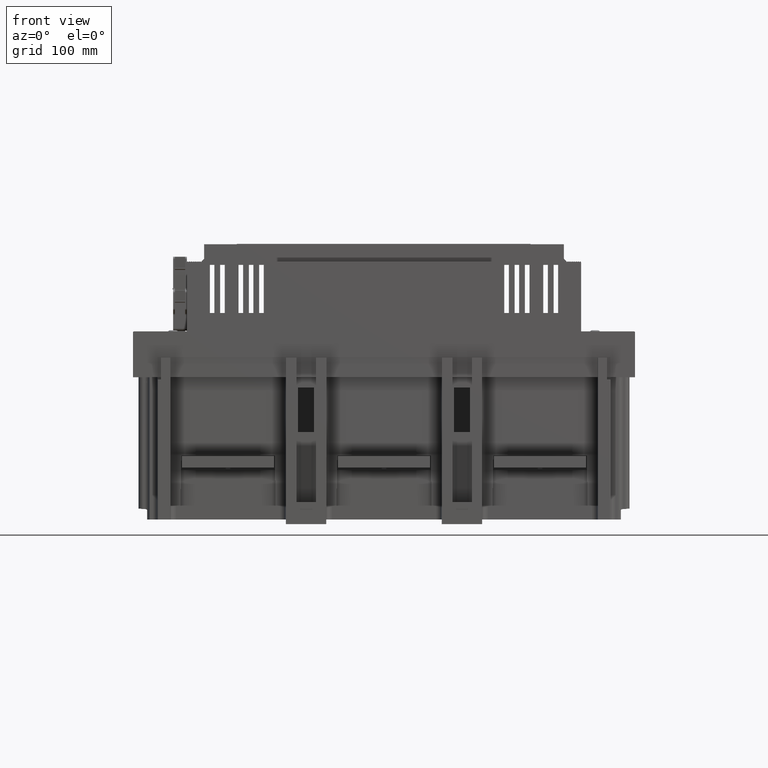
[diagram: clean part render]
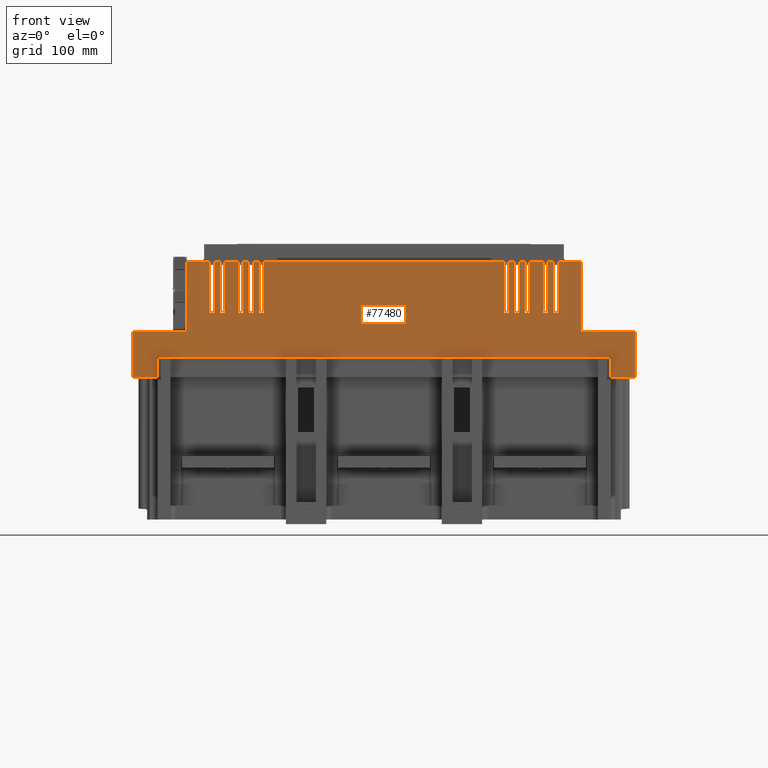
[diagram: same view with one face highlighted and labeled with its STEP entity id]
A machine part, front view. The second image highlights one B-rep face of the part: STEP entity #77480.
In plain terms, the highlighted planar face has unit normal (0, -1, 0).
Its self-contained STEP definition (entity closure, byte-faithful):
#64335=DIRECTION('',(1.E0,0.E0,0.E0));
#64336=VECTOR('',#64335,2.135E1);
#64337=CARTESIAN_POINT('',(1.975E2,-1.435E2,0.E0));
#64338=LINE('',#64337,#64336);
#64391=DIRECTION('',(1.E0,0.E0,0.E0));
#64392=VECTOR('',#64391,2.135E1);
#64393=CARTESIAN_POINT('',(-2.1885E2,-1.435E2,0.E0));
#64394=LINE('',#64393,#64392);
#66626=DIRECTION('',(0.E0,0.E0,1.E0));
#66627=VECTOR('',#66626,1.75E1);
#66628=CARTESIAN_POINT('',(-1.975E2,-1.435E2,0.E0));
#66629=LINE('',#66628,#66627);
#66633=DIRECTION('',(0.E0,0.E0,1.E0));
#66634=VECTOR('',#66633,3.900000000001E1);
#66635=CARTESIAN_POINT('',(-2.1885E2,-1.435E2,0.E0));
#66636=LINE('',#66635,#66634);
#66640=CARTESIAN_POINT('',(-2.1785E2,-1.435E2,3.900000000001E1));
#66641=DIRECTION('',(0.E0,1.E0,0.E0));
#66642=DIRECTION('',(-1.E0,0.E0,-3.410605131671E-13));
#66643=AXIS2_PLACEMENT_3D('',#66640,#66641,#66642);
#66648=DIRECTION('',(-1.E0,0.E0,0.E0));
#66649=VECTOR('',#66648,4.600000000001E1);
#66650=CARTESIAN_POINT('',(-1.7185E2,-1.435E2,4.E1));
#66651=LINE('',#66650,#66649);
#66655=DIRECTION('',(0.E0,0.E0,-1.E0));
#66656=VECTOR('',#66655,6.000000000001E1);
#66657=CARTESIAN_POINT('',(-1.7185E2,-1.435E2,1.E2));
#66658=LINE('',#66657,#66656);
#66662=CARTESIAN_POINT('',(-1.7085E2,-1.435E2,1.E2));
#66663=DIRECTION('',(0.E0,1.E0,0.E0));
#66664=DIRECTION('',(-1.E0,0.E0,0.E0));
#66665=AXIS2_PLACEMENT_3D('',#66662,#66663,#66664);
#66670=DIRECTION('',(1.E0,0.E0,-4.736951571632E-14));
#66671=VECTOR('',#66670,3.000000000065E-1);
#66672=CARTESIAN_POINT('',(-1.7085E2,-1.435E2,1.01E2));
#66673=LINE('',#66672,#66671);
#66677=DIRECTION('',(0.E0,0.E0,-1.E0));
#66678=VECTOR('',#66677,5.E-1);
#66679=CARTESIAN_POINT('',(-1.7055E2,-1.435E2,1.01E2));
#66680=LINE('',#66679,#66678);
#66684=DIRECTION('',(-1.E0,0.E0,-5.684341886082E-14));
#66685=VECTOR('',#66684,4.999999999999E-1);
#66686=CARTESIAN_POINT('',(-1.7005E2,-1.435E2,1.005E2));
#66687=LINE('',#66686,#66685);
#66691=DIRECTION('',(0.E0,0.E0,-1.E0));
#66692=VECTOR('',#66691,4.999999999999E-1);
#66693=CARTESIAN_POINT('',(-1.7005E2,-1.435E2,1.01E2));
#66694=LINE('',#66693,#66692);
#66698=DIRECTION('',(1.E0,0.E0,-1.093142670400E-14));
#66699=VECTOR('',#66698,1.3E0);
#66700=CARTESIAN_POINT('',(-1.7005E2,-1.435E2,1.01E2));
#66701=LINE('',#66700,#66699);
#66705=DIRECTION('',(0.E0,0.E0,-1.E0));
#66706=VECTOR('',#66705,5.E-1);
#66707=CARTESIAN_POINT('',(-1.6875E2,-1.435E2,1.01E2));
#66708=LINE('',#66707,#66706);
#66712=DIRECTION('',(-1.E0,0.E0,-5.684341886082E-14));
#66713=VECTOR('',#66712,4.999999999999E-1);
#66714=CARTESIAN_POINT('',(-1.6825E2,-1.435E2,1.005E2));
#66715=LINE('',#66714,#66713);
#66719=DIRECTION('',(0.E0,0.E0,-1.E0));
#66720=VECTOR('',#66719,4.999999999999E-1);
#66721=CARTESIAN_POINT('',(-1.6825E2,-1.435E2,1.01E2));
#66722=LINE('',#66721,#66720);
#66726=DIRECTION('',(1.E0,0.E0,-1.093142670400E-14));
#66727=VECTOR('',#66726,1.3E0);
#66728=CARTESIAN_POINT('',(-1.6825E2,-1.435E2,1.01E2));
#66729=LINE('',#66728,#66727);
#66733=DIRECTION('',(0.E0,0.E0,-1.E0));
#66734=VECTOR('',#66733,5.E-1);
#66735=CARTESIAN_POINT('',(-1.6695E2,-1.435E2,1.01E2));
#66736=LINE('',#66735,#66734);
#66740=DIRECTION('',(-1.E0,0.E0,-5.684341886082E-14));
#66741=VECTOR('',#66740,4.999999999999E-1);
#66742=CARTESIAN_POINT('',(-1.6645E2,-1.435E2,1.005E2));
#66743=LINE('',#66742,#66741);
#66747=DIRECTION('',(0.E0,0.E0,-1.E0));
#66748=VECTOR('',#66747,4.999999999999E-1);
#66749=CARTESIAN_POINT('',(-1.6645E2,-1.435E2,1.01E2));
#66750=LINE('',#66749,#66748);
#66754=DIRECTION('',(1.E0,0.E0,-1.093142670400E-14));
#66755=VECTOR('',#66754,1.3E0);
#66756=CARTESIAN_POINT('',(-1.6645E2,-1.435E2,1.01E2));
#66757=LINE('',#66756,#66755);
#66761=DIRECTION('',(0.E0,0.E0,-1.E0));
#66762=VECTOR('',#66761,5.E-1);
#66763=CARTESIAN_POINT('',(-1.6515E2,-1.435E2,1.01E2));
#66764=LINE('',#66763,#66762);
#66768=DIRECTION('',(-1.E0,0.E0,-5.684341886082E-14));
#66769=VECTOR('',#66768,4.999999999999E-1);
#66770=CARTESIAN_POINT('',(-1.6465E2,-1.435E2,1.005E2));
#66771=LINE('',#66770,#66769);
#66775=DIRECTION('',(0.E0,0.E0,-1.E0));
#66776=VECTOR('',#66775,4.999999999999E-1);
#66777=CARTESIAN_POINT('',(-1.6465E2,-1.435E2,1.01E2));
#66778=LINE('',#66777,#66776);
#66782=DIRECTION('',(1.E0,0.E0,-1.093142670400E-14));
#66783=VECTOR('',#66782,1.3E0);
#66784=CARTESIAN_POINT('',(-1.6465E2,-1.435E2,1.01E2));
#66785=LINE('',#66784,#66783);
#66789=DIRECTION('',(0.E0,0.E0,-1.E0));
#66790=VECTOR('',#66789,5.E-1);
#66791=CARTESIAN_POINT('',(-1.6335E2,-1.435E2,1.01E2));
#66792=LINE('',#66791,#66790);
#66796=DIRECTION('',(-1.E0,0.E0,-5.684341886082E-14));
#66797=VECTOR('',#66796,4.999999999999E-1);
#66798=CARTESIAN_POINT('',(-1.6285E2,-1.435E2,1.005E2));
#66799=LINE('',#66798,#66797);
#66803=DIRECTION('',(0.E0,0.E0,-1.E0));
#66804=VECTOR('',#66803,4.999999999999E-1);
#66805=CARTESIAN_POINT('',(-1.6285E2,-1.435E2,1.01E2));
#66806=LINE('',#66805,#66804);
#66810=DIRECTION('',(1.E0,0.E0,-1.093142670400E-14));
#66811=VECTOR('',#66810,1.3E0);
#66812=CARTESIAN_POINT('',(-1.6285E2,-1.435E2,1.01E2));
#66813=LINE('',#66812,#66811);
#66817=DIRECTION('',(0.E0,0.E0,-1.E0));
#66818=VECTOR('',#66817,5.E-1);
#66819=CARTESIAN_POINT('',(-1.6155E2,-1.435E2,1.01E2));
#66820=LINE('',#66819,#66818);
#66824=DIRECTION('',(-1.E0,0.E0,-5.684341886082E-14));
#66825=VECTOR('',#66824,4.999999999999E-1);
#66826=CARTESIAN_POINT('',(-1.6105E2,-1.435E2,1.005E2));
#66827=LINE('',#66826,#66825);
#66831=DIRECTION('',(0.E0,0.E0,-1.E0));
#66832=VECTOR('',#66831,4.999999999999E-1);
#66833=CARTESIAN_POINT('',(-1.6105E2,-1.435E2,1.01E2));
#66834=LINE('',#66833,#66832);
#66838=DIRECTION('',(1.E0,0.E0,-1.093142670400E-14));
#66839=VECTOR('',#66838,1.3E0);
#66840=CARTESIAN_POINT('',(-1.6105E2,-1.435E2,1.01E2));
#66841=LINE('',#66840,#66839);
#66845=DIRECTION('',(0.E0,0.E0,-1.E0));
#66846=VECTOR('',#66845,5.E-1);
#66847=CARTESIAN_POINT('',(-1.5975E2,-1.435E2,1.01E2));
#66848=LINE('',#66847,#66846);
#66852=DIRECTION('',(-1.E0,0.E0,-5.684341886082E-14));
#66853=VECTOR('',#66852,4.999999999999E-1);
#66854=CARTESIAN_POINT('',(-1.5925E2,-1.435E2,1.005E2));
#66855=LINE('',#66854,#66853);
#66859=DIRECTION('',(0.E0,0.E0,-1.E0));
#66860=VECTOR('',#66859,4.999999999999E-1);
#66861=CARTESIAN_POINT('',(-1.5925E2,-1.435E2,1.01E2));
#66862=LINE('',#66861,#66860);
#66866=DIRECTION('',(1.E0,0.E0,0.E0));
#66867=VECTOR('',#66866,7.400000000001E0);
#66868=CARTESIAN_POINT('',(-1.5925E2,-1.435E2,1.01E2));
#66869=LINE('',#66868,#66867);
#66873=DIRECTION('',(0.E0,0.E0,-1.E0));
#66874=VECTOR('',#66873,4.5E1);
#66875=CARTESIAN_POINT('',(-1.5185E2,-1.435E2,1.01E2));
#66876=LINE('',#66875,#66874);
#66880=DIRECTION('',(-1.E0,0.E0,0.E0));
#66881=VECTOR('',#66880,4.E0);
#66882=CARTESIAN_POINT('',(-1.4785E2,-1.435E2,5.6E1));
#66883=LINE('',#66882,#66881);
#66887=DIRECTION('',(0.E0,0.E0,-1.E0));
#66888=VECTOR('',#66887,4.5E1);
#66889=CARTESIAN_POINT('',(-1.4785E2,-1.435E2,1.01E2));
#66890=LINE('',#66889,#66888);
#66894=DIRECTION('',(1.E0,0.E0,0.E0));
#66895=VECTOR('',#66894,5.E0);
#66896=CARTESIAN_POINT('',(-1.4785E2,-1.435E2,1.01E2));
#66897=LINE('',#66896,#66895);
#66901=DIRECTION('',(0.E0,0.E0,-1.E0));
#66902=VECTOR('',#66901,4.5E1);
#66903=CARTESIAN_POINT('',(-1.4285E2,-1.435E2,1.01E2));
#66904=LINE('',#66903,#66902);
#66908=DIRECTION('',(-1.E0,0.E0,0.E0));
#66909=VECTOR('',#66908,4.E0);
#66910=CARTESIAN_POINT('',(-1.3885E2,-1.435E2,5.6E1));
#66911=LINE('',#66910,#66909);
#66915=DIRECTION('',(0.E0,0.E0,-1.E0));
#66916=VECTOR('',#66915,4.5E1);
#66917=CARTESIAN_POINT('',(-1.3885E2,-1.435E2,1.01E2));
#66918=LINE('',#66917,#66916);
#66922=DIRECTION('',(1.E0,0.E0,0.E0));
#66923=VECTOR('',#66922,1.2E1);
#66924=CARTESIAN_POINT('',(-1.3885E2,-1.435E2,1.01E2));
#66925=LINE('',#66924,#66923);
#66929=DIRECTION('',(0.E0,0.E0,-1.E0));
#66930=VECTOR('',#66929,4.5E1);
#66931=CARTESIAN_POINT('',(-1.2685E2,-1.435E2,1.01E2));
#66932=LINE('',#66931,#66930);
#66936=DIRECTION('',(-1.E0,0.E0,0.E0));
#66937=VECTOR('',#66936,4.E0);
#66938=CARTESIAN_POINT('',(-1.2285E2,-1.435E2,5.6E1));
#66939=LINE('',#66938,#66937);
#66943=DIRECTION('',(0.E0,0.E0,-1.E0));
#66944=VECTOR('',#66943,4.5E1);
#66945=CARTESIAN_POINT('',(-1.2285E2,-1.435E2,1.01E2));
#66946=LINE('',#66945,#66944);
#66950=DIRECTION('',(1.E0,0.E0,0.E0));
#66951=VECTOR('',#66950,5.E0);
#66952=CARTESIAN_POINT('',(-1.2285E2,-1.435E2,1.01E2));
#66953=LINE('',#66952,#66951);
#66957=DIRECTION('',(0.E0,0.E0,-1.E0));
#66958=VECTOR('',#66957,4.5E1);
#66959=CARTESIAN_POINT('',(-1.1785E2,-1.435E2,1.01E2));
#66960=LINE('',#66959,#66958);
#66964=DIRECTION('',(-1.E0,0.E0,0.E0));
#66965=VECTOR('',#66964,4.E0);
#66966=CARTESIAN_POINT('',(-1.1385E2,-1.435E2,5.6E1));
#66967=LINE('',#66966,#66965);
#66971=DIRECTION('',(0.E0,0.E0,-1.E0));
#66972=VECTOR('',#66971,4.5E1);
#66973=CARTESIAN_POINT('',(-1.1385E2,-1.435E2,1.01E2));
#66974=LINE('',#66973,#66972);
#66978=DIRECTION('',(1.E0,0.E0,0.E0));
#66979=VECTOR('',#66978,5.E0);
#66980=CARTESIAN_POINT('',(-1.1385E2,-1.435E2,1.01E2));
#66981=LINE('',#66980,#66979);
#66985=DIRECTION('',(0.E0,0.E0,-1.E0));
#66986=VECTOR('',#66985,4.5E1);
#66987=CARTESIAN_POINT('',(-1.0885E2,-1.435E2,1.01E2));
#66988=LINE('',#66987,#66986);
#66992=DIRECTION('',(-1.E0,0.E0,0.E0));
#66993=VECTOR('',#66992,4.E0);
#66994=CARTESIAN_POINT('',(-1.0485E2,-1.435E2,5.6E1));
#66995=LINE('',#66994,#66993);
#66999=DIRECTION('',(0.E0,0.E0,-1.E0));
#67000=VECTOR('',#66999,4.5E1);
#67001=CARTESIAN_POINT('',(-1.0485E2,-1.435E2,1.01E2));
#67002=LINE('',#67001,#67000);
#67006=DIRECTION('',(1.E0,0.E0,0.E0));
#67007=VECTOR('',#67006,2.097E2);
#67008=CARTESIAN_POINT('',(-1.0485E2,-1.435E2,1.01E2));
#67009=LINE('',#67008,#67007);
#67013=DIRECTION('',(0.E0,0.E0,-1.E0));
#67014=VECTOR('',#67013,4.5E1);
#67015=CARTESIAN_POINT('',(1.0485E2,-1.435E2,1.01E2));
#67016=LINE('',#67015,#67014);
#67020=DIRECTION('',(-1.E0,0.E0,0.E0));
#67021=VECTOR('',#67020,4.E0);
#67022=CARTESIAN_POINT('',(1.0885E2,-1.435E2,5.6E1));
#67023=LINE('',#67022,#67021);
#67027=DIRECTION('',(0.E0,0.E0,-1.E0));
#67028=VECTOR('',#67027,4.5E1);
#67029=CARTESIAN_POINT('',(1.0885E2,-1.435E2,1.01E2));
#67030=LINE('',#67029,#67028);
#67034=DIRECTION('',(1.E0,0.E0,0.E0));
#67035=VECTOR('',#67034,5.E0);
#67036=CARTESIAN_POINT('',(1.0885E2,-1.435E2,1.01E2));
#67037=LINE('',#67036,#67035);
#67041=DIRECTION('',(0.E0,0.E0,-1.E0));
#67042=VECTOR('',#67041,4.5E1);
#67043=CARTESIAN_POINT('',(1.1385E2,-1.435E2,1.01E2));
#67044=LINE('',#67043,#67042);
#67048=DIRECTION('',(-1.E0,0.E0,0.E0));
#67049=VECTOR('',#67048,4.E0);
#67050=CARTESIAN_POINT('',(1.1785E2,-1.435E2,5.6E1));
#67051=LINE('',#67050,#67049);
#67055=DIRECTION('',(0.E0,0.E0,-1.E0));
#67056=VECTOR('',#67055,4.5E1);
#67057=CARTESIAN_POINT('',(1.1785E2,-1.435E2,1.01E2));
#67058=LINE('',#67057,#67056);
#67062=DIRECTION('',(1.E0,0.E0,0.E0));
#67063=VECTOR('',#67062,5.E0);
#67064=CARTESIAN_POINT('',(1.1785E2,-1.435E2,1.01E2));
#67065=LINE('',#67064,#67063);
#67069=DIRECTION('',(0.E0,0.E0,-1.E0));
#67070=VECTOR('',#67069,4.5E1);
#67071=CARTESIAN_POINT('',(1.2285E2,-1.435E2,1.01E2));
#67072=LINE('',#67071,#67070);
#67076=DIRECTION('',(-1.E0,0.E0,0.E0));
#67077=VECTOR('',#67076,4.E0);
#67078=CARTESIAN_POINT('',(1.2685E2,-1.435E2,5.6E1));
#67079=LINE('',#67078,#67077);
#67083=DIRECTION('',(0.E0,0.E0,-1.E0));
#67084=VECTOR('',#67083,4.5E1);
#67085=CARTESIAN_POINT('',(1.2685E2,-1.435E2,1.01E2));
#67086=LINE('',#67085,#67084);
#67090=DIRECTION('',(1.E0,0.E0,0.E0));
#67091=VECTOR('',#67090,1.2E1);
#67092=CARTESIAN_POINT('',(1.2685E2,-1.435E2,1.01E2));
#67093=LINE('',#67092,#67091);
#67097=DIRECTION('',(0.E0,0.E0,-1.E0));
#67098=VECTOR('',#67097,4.5E1);
#67099=CARTESIAN_POINT('',(1.3885E2,-1.435E2,1.01E2));
#67100=LINE('',#67099,#67098);
#67104=DIRECTION('',(-1.E0,0.E0,0.E0));
#67105=VECTOR('',#67104,4.E0);
#67106=CARTESIAN_POINT('',(1.4285E2,-1.435E2,5.6E1));
#67107=LINE('',#67106,#67105);
#67111=DIRECTION('',(0.E0,0.E0,-1.E0));
#67112=VECTOR('',#67111,4.5E1);
#67113=CARTESIAN_POINT('',(1.4285E2,-1.435E2,1.01E2));
#67114=LINE('',#67113,#67112);
#67118=DIRECTION('',(1.E0,0.E0,0.E0));
#67119=VECTOR('',#67118,5.E0);
#67120=CARTESIAN_POINT('',(1.4285E2,-1.435E2,1.01E2));
#67121=LINE('',#67120,#67119);
#67125=DIRECTION('',(0.E0,0.E0,-1.E0));
#67126=VECTOR('',#67125,4.5E1);
#67127=CARTESIAN_POINT('',(1.4785E2,-1.435E2,1.01E2));
#67128=LINE('',#67127,#67126);
#67132=DIRECTION('',(-1.E0,0.E0,0.E0));
#67133=VECTOR('',#67132,4.E0);
#67134=CARTESIAN_POINT('',(1.5185E2,-1.435E2,5.6E1));
#67135=LINE('',#67134,#67133);
#67139=DIRECTION('',(0.E0,0.E0,-1.E0));
#67140=VECTOR('',#67139,4.5E1);
#67141=CARTESIAN_POINT('',(1.5185E2,-1.435E2,1.01E2));
#67142=LINE('',#67141,#67140);
#67146=DIRECTION('',(1.E0,0.E0,0.E0));
#67147=VECTOR('',#67146,7.400000000001E0);
#67148=CARTESIAN_POINT('',(1.5185E2,-1.435E2,1.01E2));
#67149=LINE('',#67148,#67147);
#67153=DIRECTION('',(0.E0,0.E0,-1.E0));
#67154=VECTOR('',#67153,5.E-1);
#67155=CARTESIAN_POINT('',(1.5925E2,-1.435E2,1.01E2));
#67156=LINE('',#67155,#67154);
#67160=DIRECTION('',(-1.E0,0.E0,-5.684341886082E-14));
#67161=VECTOR('',#67160,4.999999999999E-1);
#67162=CARTESIAN_POINT('',(1.5975E2,-1.435E2,1.005E2));
#67163=LINE('',#67162,#67161);
#67167=DIRECTION('',(0.E0,0.E0,-1.E0));
#67168=VECTOR('',#67167,5.E-1);
#67169=CARTESIAN_POINT('',(1.5975E2,-1.435E2,1.01E2));
#67170=LINE('',#67169,#67168);
#67174=DIRECTION('',(1.E0,0.E0,-2.186285340800E-14));
#67175=VECTOR('',#67174,1.3E0);
#67176=CARTESIAN_POINT('',(1.5975E2,-1.435E2,1.01E2));
#67177=LINE('',#67176,#67175);
#67181=DIRECTION('',(0.E0,0.E0,-1.E0));
#67182=VECTOR('',#67181,5.E-1);
#67183=CARTESIAN_POINT('',(1.6105E2,-1.435E2,1.01E2));
#67184=LINE('',#67183,#67182);
#67188=DIRECTION('',(-1.E0,0.E0,-5.684341886082E-14));
#67189=VECTOR('',#67188,4.999999999999E-1);
#67190=CARTESIAN_POINT('',(1.6155E2,-1.435E2,1.005E2));
#67191=LINE('',#67190,#67189);
#67195=DIRECTION('',(0.E0,0.E0,-1.E0));
#67196=VECTOR('',#67195,5.E-1);
#67197=CARTESIAN_POINT('',(1.6155E2,-1.435E2,1.01E2));
#67198=LINE('',#67197,#67196);
#67202=DIRECTION('',(1.E0,0.E0,-2.186285340800E-14));
#67203=VECTOR('',#67202,1.3E0);
#67204=CARTESIAN_POINT('',(1.6155E2,-1.435E2,1.01E2));
#67205=LINE('',#67204,#67203);
#67209=DIRECTION('',(5.684341886081E-14,0.E0,-1.E0));
#67210=VECTOR('',#67209,5.E-1);
#67211=CARTESIAN_POINT('',(1.6285E2,-1.435E2,1.01E2));
#67212=LINE('',#67211,#67210);
#67216=DIRECTION('',(-1.E0,0.E0,-5.684341886082E-14));
#67217=VECTOR('',#67216,4.999999999999E-1);
#67218=CARTESIAN_POINT('',(1.6335E2,-1.435E2,1.005E2));
#67219=LINE('',#67218,#67217);
#67223=DIRECTION('',(0.E0,0.E0,-1.E0));
#67224=VECTOR('',#67223,5.E-1);
#67225=CARTESIAN_POINT('',(1.6335E2,-1.435E2,1.01E2));
#67226=LINE('',#67225,#67224);
#67230=DIRECTION('',(1.E0,0.E0,-2.186285340800E-14));
#67231=VECTOR('',#67230,1.3E0);
#67232=CARTESIAN_POINT('',(1.6335E2,-1.435E2,1.01E2));
#67233=LINE('',#67232,#67231);
#67237=DIRECTION('',(5.684341886081E-14,0.E0,-1.E0));
#67238=VECTOR('',#67237,5.E-1);
#67239=CARTESIAN_POINT('',(1.6465E2,-1.435E2,1.01E2));
#67240=LINE('',#67239,#67238);
#67244=DIRECTION('',(-1.E0,0.E0,-5.684341886082E-14));
#67245=VECTOR('',#67244,4.999999999999E-1);
#67246=CARTESIAN_POINT('',(1.6515E2,-1.435E2,1.005E2));
#67247=LINE('',#67246,#67245);
#67251=DIRECTION('',(0.E0,0.E0,-1.E0));
#67252=VECTOR('',#67251,5.E-1);
#67253=CARTESIAN_POINT('',(1.6515E2,-1.435E2,1.01E2));
#67254=LINE('',#67253,#67252);
#67258=DIRECTION('',(1.E0,0.E0,-2.186285340800E-14));
#67259=VECTOR('',#67258,1.3E0);
#67260=CARTESIAN_POINT('',(1.6515E2,-1.435E2,1.01E2));
#67261=LINE('',#67260,#67259);
#67265=DIRECTION('',(5.684341886081E-14,0.E0,-1.E0));
#67266=VECTOR('',#67265,5.E-1);
#67267=CARTESIAN_POINT('',(1.6645E2,-1.435E2,1.01E2));
#67268=LINE('',#67267,#67266);
#67272=DIRECTION('',(-1.E0,0.E0,-5.684341886082E-14));
#67273=VECTOR('',#67272,4.999999999999E-1);
#67274=CARTESIAN_POINT('',(1.6695E2,-1.435E2,1.005E2));
#67275=LINE('',#67274,#67273);
#67279=DIRECTION('',(0.E0,0.E0,-1.E0));
#67280=VECTOR('',#67279,5.E-1);
#67281=CARTESIAN_POINT('',(1.6695E2,-1.435E2,1.01E2));
#67282=LINE('',#67281,#67280);
#67286=DIRECTION('',(1.E0,0.E0,-2.186285340800E-14));
#67287=VECTOR('',#67286,1.3E0);
#67288=CARTESIAN_POINT('',(1.6695E2,-1.435E2,1.01E2));
#67289=LINE('',#67288,#67287);
#67293=DIRECTION('',(5.684341886081E-14,0.E0,-1.E0));
#67294=VECTOR('',#67293,5.E-1);
#67295=CARTESIAN_POINT('',(1.6825E2,-1.435E2,1.01E2));
#67296=LINE('',#67295,#67294);
#67300=DIRECTION('',(-1.E0,0.E0,-5.684341886082E-14));
#67301=VECTOR('',#67300,4.999999999999E-1);
#67302=CARTESIAN_POINT('',(1.6875E2,-1.435E2,1.005E2));
#67303=LINE('',#67302,#67301);
#67307=DIRECTION('',(0.E0,0.E0,-1.E0));
#67308=VECTOR('',#67307,5.E-1);
#67309=CARTESIAN_POINT('',(1.6875E2,-1.435E2,1.01E2));
#67310=LINE('',#67309,#67308);
#67314=DIRECTION('',(1.E0,0.E0,-2.186285340800E-14));
#67315=VECTOR('',#67314,1.3E0);
#67316=CARTESIAN_POINT('',(1.6875E2,-1.435E2,1.01E2));
#67317=LINE('',#67316,#67315);
#67321=DIRECTION('',(0.E0,0.E0,-1.E0));
#67322=VECTOR('',#67321,5.E-1);
#67323=CARTESIAN_POINT('',(1.7005E2,-1.435E2,1.01E2));
#67324=LINE('',#67323,#67322);
#67328=DIRECTION('',(-1.E0,0.E0,-5.684341886082E-14));
#67329=VECTOR('',#67328,4.999999999999E-1);
#67330=CARTESIAN_POINT('',(1.7055E2,-1.435E2,1.005E2));
#67331=LINE('',#67330,#67329);
#67335=DIRECTION('',(0.E0,0.E0,-1.E0));
#67336=VECTOR('',#67335,5.E-1);
#67337=CARTESIAN_POINT('',(1.7055E2,-1.435E2,1.01E2));
#67338=LINE('',#67337,#67336);
#67342=DIRECTION('',(1.E0,0.E0,0.E0));
#67343=VECTOR('',#67342,3.000000000065E-1);
#67344=CARTESIAN_POINT('',(1.7055E2,-1.435E2,1.01E2));
#67345=LINE('',#67344,#67343);
#67349=CARTESIAN_POINT('',(1.7085E2,-1.435E2,1.E2));
#67350=DIRECTION('',(0.E0,1.E0,0.E0));
#67351=DIRECTION('',(0.E0,0.E0,1.E0));
#67352=AXIS2_PLACEMENT_3D('',#67349,#67350,#67351);
#67357=DIRECTION('',(0.E0,0.E0,1.E0));
#67358=VECTOR('',#67357,6.000000000001E1);
#67359=CARTESIAN_POINT('',(1.7185E2,-1.435E2,4.E1));
#67360=LINE('',#67359,#67358);
#67364=DIRECTION('',(-1.E0,0.E0,0.E0));
#67365=VECTOR('',#67364,4.600000000001E1);
#67366=CARTESIAN_POINT('',(2.1785E2,-1.435E2,4.E1));
#67367=LINE('',#67366,#67365);
#67371=CARTESIAN_POINT('',(2.1785E2,-1.435E2,3.900000000001E1));
#67372=DIRECTION('',(0.E0,1.E0,0.E0));
#67373=DIRECTION('',(-5.684341886119E-14,0.E0,1.E0));
#67374=AXIS2_PLACEMENT_3D('',#67371,#67372,#67373);
#67379=DIRECTION('',(0.E0,0.E0,1.E0));
#67380=VECTOR('',#67379,1.75E1);
#67381=CARTESIAN_POINT('',(1.975E2,-1.435E2,0.E0));
#67382=LINE('',#67381,#67380);
#67386=DIRECTION('',(1.E0,0.E0,0.E0));
#67387=VECTOR('',#67386,3.95E2);
#67388=CARTESIAN_POINT('',(-1.975E2,-1.435E2,1.75E1));
#67389=LINE('',#67388,#67387);
#68342=DIRECTION('',(0.E0,0.E0,1.E0));
#68343=VECTOR('',#68342,3.900000000001E1);
#68344=CARTESIAN_POINT('',(2.1885E2,-1.435E2,0.E0));
#68345=LINE('',#68344,#68343);
#73215=CARTESIAN_POINT('',(-2.1885E2,-1.435E2,0.E0));
#73217=VERTEX_POINT('',#73215);
#73218=CARTESIAN_POINT('',(2.1885E2,-1.435E2,0.E0));
#73220=VERTEX_POINT('',#73218);
#73230=CARTESIAN_POINT('',(-2.1885E2,-1.435E2,3.900000000001E1));
#73232=VERTEX_POINT('',#73230);
#73234=CARTESIAN_POINT('',(2.1785E2,-1.435E2,4.E1));
#73235=CARTESIAN_POINT('',(2.1885E2,-1.435E2,3.900000000001E1));
#73236=VERTEX_POINT('',#73234);
#73237=VERTEX_POINT('',#73235);
#73238=CARTESIAN_POINT('',(1.7185E2,-1.435E2,4.E1));
#73239=CARTESIAN_POINT('',(1.7185E2,-1.435E2,1.E2));
#73240=VERTEX_POINT('',#73238);
#73241=VERTEX_POINT('',#73239);
#73242=CARTESIAN_POINT('',(1.7085E2,-1.435E2,1.01E2));
#73243=VERTEX_POINT('',#73242);
#73244=CARTESIAN_POINT('',(1.7055E2,-1.435E2,1.01E2));
#73245=CARTESIAN_POINT('',(1.7055E2,-1.435E2,1.005E2));
#73246=VERTEX_POINT('',#73244);
#73247=VERTEX_POINT('',#73245);
#73248=CARTESIAN_POINT('',(1.7005E2,-1.435E2,1.005E2));
#73249=VERTEX_POINT('',#73248);
#73250=CARTESIAN_POINT('',(1.7005E2,-1.435E2,1.01E2));
#73251=VERTEX_POINT('',#73250);
#73252=CARTESIAN_POINT('',(1.6875E2,-1.435E2,1.01E2));
#73253=CARTESIAN_POINT('',(1.6875E2,-1.435E2,1.005E2));
#73254=VERTEX_POINT('',#73252);
#73255=VERTEX_POINT('',#73253);
#73256=CARTESIAN_POINT('',(1.6825E2,-1.435E2,1.005E2));
#73257=VERTEX_POINT('',#73256);
#73258=CARTESIAN_POINT('',(1.6825E2,-1.435E2,1.01E2));
#73259=VERTEX_POINT('',#73258);
#73260=CARTESIAN_POINT('',(1.6695E2,-1.435E2,1.01E2));
#73261=CARTESIAN_POINT('',(1.6695E2,-1.435E2,1.005E2));
#73262=VERTEX_POINT('',#73260);
#73263=VERTEX_POINT('',#73261);
#73264=CARTESIAN_POINT('',(1.6645E2,-1.435E2,1.005E2));
#73265=VERTEX_POINT('',#73264);
#73266=CARTESIAN_POINT('',(1.6645E2,-1.435E2,1.01E2));
#73267=VERTEX_POINT('',#73266);
#73268=CARTESIAN_POINT('',(1.6515E2,-1.435E2,1.01E2));
#73269=CARTESIAN_POINT('',(1.6515E2,-1.435E2,1.005E2));
#73270=VERTEX_POINT('',#73268);
#73271=VERTEX_POINT('',#73269);
#73272=CARTESIAN_POINT('',(1.6465E2,-1.435E2,1.005E2));
#73273=VERTEX_POINT('',#73272);
#73274=CARTESIAN_POINT('',(1.6465E2,-1.435E2,1.01E2));
#73275=VERTEX_POINT('',#73274);
#73276=CARTESIAN_POINT('',(1.6335E2,-1.435E2,1.01E2));
#73277=CARTESIAN_POINT('',(1.6335E2,-1.435E2,1.005E2));
#73278=VERTEX_POINT('',#73276);
#73279=VERTEX_POINT('',#73277);
#73280=CARTESIAN_POINT('',(1.6285E2,-1.435E2,1.005E2));
#73281=VERTEX_POINT('',#73280);
#73282=CARTESIAN_POINT('',(1.6285E2,-1.435E2,1.01E2));
#73283=VERTEX_POINT('',#73282);
#73284=CARTESIAN_POINT('',(1.6155E2,-1.435E2,1.01E2));
#73285=CARTESIAN_POINT('',(1.6155E2,-1.435E2,1.005E2));
#73286=VERTEX_POINT('',#73284);
#73287=VERTEX_POINT('',#73285);
#73288=CARTESIAN_POINT('',(1.6105E2,-1.435E2,1.005E2));
#73289=VERTEX_POINT('',#73288);
#73290=CARTESIAN_POINT('',(1.6105E2,-1.435E2,1.01E2));
#73291=VERTEX_POINT('',#73290);
#73292=CARTESIAN_POINT('',(1.5975E2,-1.435E2,1.01E2));
#73293=CARTESIAN_POINT('',(1.5975E2,-1.435E2,1.005E2));
#73294=VERTEX_POINT('',#73292);
#73295=VERTEX_POINT('',#73293);
#73296=CARTESIAN_POINT('',(1.5925E2,-1.435E2,1.005E2));
#73297=VERTEX_POINT('',#73296);
#73298=CARTESIAN_POINT('',(1.5925E2,-1.435E2,1.01E2));
#73299=VERTEX_POINT('',#73298);
#73300=CARTESIAN_POINT('',(-1.5925E2,-1.435E2,1.01E2));
#73301=CARTESIAN_POINT('',(-1.5925E2,-1.435E2,1.005E2));
#73302=VERTEX_POINT('',#73300);
#73303=VERTEX_POINT('',#73301);
#73304=CARTESIAN_POINT('',(-1.5975E2,-1.435E2,1.005E2));
#73305=VERTEX_POINT('',#73304);
#73306=CARTESIAN_POINT('',(-1.5975E2,-1.435E2,1.01E2));
#73307=VERTEX_POINT('',#73306);
#73308=CARTESIAN_POINT('',(-1.6105E2,-1.435E2,1.01E2));
#73309=CARTESIAN_POINT('',(-1.6105E2,-1.435E2,1.005E2));
#73310=VERTEX_POINT('',#73308);
#73311=VERTEX_POINT('',#73309);
#73312=CARTESIAN_POINT('',(-1.6155E2,-1.435E2,1.005E2));
#73313=VERTEX_POINT('',#73312);
#73314=CARTESIAN_POINT('',(-1.6155E2,-1.435E2,1.01E2));
#73315=VERTEX_POINT('',#73314);
#73316=CARTESIAN_POINT('',(-1.6285E2,-1.435E2,1.01E2));
#73317=CARTESIAN_POINT('',(-1.6285E2,-1.435E2,1.005E2));
#73318=VERTEX_POINT('',#73316);
#73319=VERTEX_POINT('',#73317);
#73320=CARTESIAN_POINT('',(-1.6335E2,-1.435E2,1.005E2));
#73321=VERTEX_POINT('',#73320);
#73322=CARTESIAN_POINT('',(-1.6335E2,-1.435E2,1.01E2));
#73323=VERTEX_POINT('',#73322);
#73324=CARTESIAN_POINT('',(-1.6465E2,-1.435E2,1.01E2));
#73325=CARTESIAN_POINT('',(-1.6465E2,-1.435E2,1.005E2));
#73326=VERTEX_POINT('',#73324);
#73327=VERTEX_POINT('',#73325);
#73328=CARTESIAN_POINT('',(-1.6515E2,-1.435E2,1.005E2));
#73329=VERTEX_POINT('',#73328);
#73330=CARTESIAN_POINT('',(-1.6515E2,-1.435E2,1.01E2));
#73331=VERTEX_POINT('',#73330);
#73332=CARTESIAN_POINT('',(-1.6645E2,-1.435E2,1.01E2));
#73333=CARTESIAN_POINT('',(-1.6645E2,-1.435E2,1.005E2));
#73334=VERTEX_POINT('',#73332);
#73335=VERTEX_POINT('',#73333);
#73336=CARTESIAN_POINT('',(-1.6695E2,-1.435E2,1.005E2));
#73337=VERTEX_POINT('',#73336);
#73338=CARTESIAN_POINT('',(-1.6695E2,-1.435E2,1.01E2));
#73339=VERTEX_POINT('',#73338);
#73340=CARTESIAN_POINT('',(-1.6825E2,-1.435E2,1.01E2));
#73341=CARTESIAN_POINT('',(-1.6825E2,-1.435E2,1.005E2));
#73342=VERTEX_POINT('',#73340);
#73343=VERTEX_POINT('',#73341);
#73344=CARTESIAN_POINT('',(-1.6875E2,-1.435E2,1.005E2));
#73345=VERTEX_POINT('',#73344);
#73346=CARTESIAN_POINT('',(-1.6875E2,-1.435E2,1.01E2));
#73347=VERTEX_POINT('',#73346);
#73348=CARTESIAN_POINT('',(-1.7005E2,-1.435E2,1.01E2));
#73349=CARTESIAN_POINT('',(-1.7005E2,-1.435E2,1.005E2));
#73350=VERTEX_POINT('',#73348);
#73351=VERTEX_POINT('',#73349);
#73352=CARTESIAN_POINT('',(-1.7055E2,-1.435E2,1.005E2));
#73353=VERTEX_POINT('',#73352);
#73354=CARTESIAN_POINT('',(-1.7055E2,-1.435E2,1.01E2));
#73355=VERTEX_POINT('',#73354);
#73356=CARTESIAN_POINT('',(-1.7185E2,-1.435E2,1.E2));
#73357=CARTESIAN_POINT('',(-1.7085E2,-1.435E2,1.01E2));
#73358=VERTEX_POINT('',#73356);
#73359=VERTEX_POINT('',#73357);
#73360=CARTESIAN_POINT('',(-1.7185E2,-1.435E2,4.E1));
#73361=VERTEX_POINT('',#73360);
#73362=CARTESIAN_POINT('',(-2.1785E2,-1.435E2,4.E1));
#73363=VERTEX_POINT('',#73362);
#73630=CARTESIAN_POINT('',(-1.5185E2,-1.435E2,1.01E2));
#73631=CARTESIAN_POINT('',(-1.5185E2,-1.435E2,5.6E1));
#73632=VERTEX_POINT('',#73630);
#73633=VERTEX_POINT('',#73631);
#73634=CARTESIAN_POINT('',(1.5185E2,-1.435E2,1.01E2));
#73635=CARTESIAN_POINT('',(1.5185E2,-1.435E2,5.6E1));
#73636=VERTEX_POINT('',#73634);
#73637=VERTEX_POINT('',#73635);
#73638=CARTESIAN_POINT('',(1.4785E2,-1.435E2,5.6E1));
#73639=VERTEX_POINT('',#73638);
#73640=CARTESIAN_POINT('',(1.4785E2,-1.435E2,1.01E2));
#73641=VERTEX_POINT('',#73640);
#73642=CARTESIAN_POINT('',(1.4285E2,-1.435E2,1.01E2));
#73643=CARTESIAN_POINT('',(1.4285E2,-1.435E2,5.6E1));
#73644=VERTEX_POINT('',#73642);
#73645=VERTEX_POINT('',#73643);
#73646=CARTESIAN_POINT('',(1.3885E2,-1.435E2,5.6E1));
#73647=VERTEX_POINT('',#73646);
#73648=CARTESIAN_POINT('',(1.3885E2,-1.435E2,1.01E2));
#73649=VERTEX_POINT('',#73648);
#73650=CARTESIAN_POINT('',(1.2685E2,-1.435E2,1.01E2));
#73651=CARTESIAN_POINT('',(1.2685E2,-1.435E2,5.6E1));
#73652=VERTEX_POINT('',#73650);
#73653=VERTEX_POINT('',#73651);
#73654=CARTESIAN_POINT('',(1.2285E2,-1.435E2,5.6E1));
#73655=VERTEX_POINT('',#73654);
#73656=CARTESIAN_POINT('',(1.2285E2,-1.435E2,1.01E2));
#73657=VERTEX_POINT('',#73656);
#73658=CARTESIAN_POINT('',(1.1785E2,-1.435E2,1.01E2));
#73659=CARTESIAN_POINT('',(1.1785E2,-1.435E2,5.6E1));
#73660=VERTEX_POINT('',#73658);
#73661=VERTEX_POINT('',#73659);
#73662=CARTESIAN_POINT('',(1.1385E2,-1.435E2,5.6E1));
#73663=VERTEX_POINT('',#73662);
#73664=CARTESIAN_POINT('',(1.1385E2,-1.435E2,1.01E2));
#73665=VERTEX_POINT('',#73664);
#73666=CARTESIAN_POINT('',(1.0885E2,-1.435E2,1.01E2));
#73667=CARTESIAN_POINT('',(1.0885E2,-1.435E2,5.6E1));
#73668=VERTEX_POINT('',#73666);
#73669=VERTEX_POINT('',#73667);
#73670=CARTESIAN_POINT('',(1.0485E2,-1.435E2,5.6E1));
#73671=VERTEX_POINT('',#73670);
#73672=CARTESIAN_POINT('',(1.0485E2,-1.435E2,1.01E2));
#73673=VERTEX_POINT('',#73672);
#73674=CARTESIAN_POINT('',(-1.0485E2,-1.435E2,1.01E2));
#73675=CARTESIAN_POINT('',(-1.0485E2,-1.435E2,5.6E1));
#73676=VERTEX_POINT('',#73674);
#73677=VERTEX_POINT('',#73675);
#73678=CARTESIAN_POINT('',(-1.0885E2,-1.435E2,5.6E1));
#73679=VERTEX_POINT('',#73678);
#73680=CARTESIAN_POINT('',(-1.0885E2,-1.435E2,1.01E2));
#73681=VERTEX_POINT('',#73680);
#73682=CARTESIAN_POINT('',(-1.1385E2,-1.435E2,1.01E2));
#73683=CARTESIAN_POINT('',(-1.1385E2,-1.435E2,5.6E1));
#73684=VERTEX_POINT('',#73682);
#73685=VERTEX_POINT('',#73683);
#73686=CARTESIAN_POINT('',(-1.1785E2,-1.435E2,5.6E1));
#73687=VERTEX_POINT('',#73686);
#73688=CARTESIAN_POINT('',(-1.1785E2,-1.435E2,1.01E2));
#73689=VERTEX_POINT('',#73688);
#73690=CARTESIAN_POINT('',(-1.2285E2,-1.435E2,1.01E2));
#73691=CARTESIAN_POINT('',(-1.2285E2,-1.435E2,5.6E1));
#73692=VERTEX_POINT('',#73690);
#73693=VERTEX_POINT('',#73691);
#73694=CARTESIAN_POINT('',(-1.2685E2,-1.435E2,5.6E1));
#73695=VERTEX_POINT('',#73694);
#73696=CARTESIAN_POINT('',(-1.2685E2,-1.435E2,1.01E2));
#73697=VERTEX_POINT('',#73696);
#73698=CARTESIAN_POINT('',(-1.3885E2,-1.435E2,1.01E2));
#73699=CARTESIAN_POINT('',(-1.3885E2,-1.435E2,5.6E1));
#73700=VERTEX_POINT('',#73698);
#73701=VERTEX_POINT('',#73699);
#73702=CARTESIAN_POINT('',(-1.4285E2,-1.435E2,5.6E1));
#73703=VERTEX_POINT('',#73702);
#73704=CARTESIAN_POINT('',(-1.4285E2,-1.435E2,1.01E2));
#73705=VERTEX_POINT('',#73704);
#73706=CARTESIAN_POINT('',(-1.4785E2,-1.435E2,1.01E2));
#73707=CARTESIAN_POINT('',(-1.4785E2,-1.435E2,5.6E1));
#73708=VERTEX_POINT('',#73706);
#73709=VERTEX_POINT('',#73707);
#74342=CARTESIAN_POINT('',(-1.975E2,-1.435E2,0.E0));
#74343=VERTEX_POINT('',#74342);
#74344=CARTESIAN_POINT('',(1.975E2,-1.435E2,0.E0));
#74345=VERTEX_POINT('',#74344);
#74346=CARTESIAN_POINT('',(-1.975E2,-1.435E2,1.75E1));
#74347=VERTEX_POINT('',#74346);
#74348=CARTESIAN_POINT('',(1.975E2,-1.435E2,1.75E1));
#74349=VERTEX_POINT('',#74348);
#77254=CARTESIAN_POINT('',(-2.1885E2,-1.435E2,0.E0));
#77255=DIRECTION('',(0.E0,-1.E0,0.E0));
#77256=DIRECTION('',(1.E0,0.E0,0.E0));
#77257=AXIS2_PLACEMENT_3D('',#77254,#77255,#77256);
#77258=PLANE('',#77257);
#77260=ORIENTED_EDGE('',*,*,#77259,.F.);
#77261=ORIENTED_EDGE('',*,*,#74843,.F.);
#77263=ORIENTED_EDGE('',*,*,#77262,.T.);
#77265=ORIENTED_EDGE('',*,*,#77264,.T.);
#77266=ORIENTED_EDGE('',*,*,#75811,.F.);
#77267=ORIENTED_EDGE('',*,*,#75716,.F.);
#77268=ORIENTED_EDGE('',*,*,#75671,.T.);
#77270=ORIENTED_EDGE('',*,*,#77269,.T.);
#77272=ORIENTED_EDGE('',*,*,#77271,.T.);
#77274=ORIENTED_EDGE('',*,*,#77273,.F.);
#77276=ORIENTED_EDGE('',*,*,#77275,.F.);
#77278=ORIENTED_EDGE('',*,*,#77277,.T.);
#77280=ORIENTED_EDGE('',*,*,#77279,.T.);
#77282=ORIENTED_EDGE('',*,*,#77281,.F.);
#77284=ORIENTED_EDGE('',*,*,#77283,.F.);
#77286=ORIENTED_EDGE('',*,*,#77285,.T.);
#77288=ORIENTED_EDGE('',*,*,#77287,.T.);
#77290=ORIENTED_EDGE('',*,*,#77289,.F.);
#77292=ORIENTED_EDGE('',*,*,#77291,.F.);
#77294=ORIENTED_EDGE('',*,*,#77293,.T.);
#77296=ORIENTED_EDGE('',*,*,#77295,.T.);
#77298=ORIENTED_EDGE('',*,*,#77297,.F.);
#77300=ORIENTED_EDGE('',*,*,#77299,.F.);
#77302=ORIENTED_EDGE('',*,*,#77301,.T.);
#77304=ORIENTED_EDGE('',*,*,#77303,.T.);
#77306=ORIENTED_EDGE('',*,*,#77305,.F.);
#77308=ORIENTED_EDGE('',*,*,#77307,.F.);
#77310=ORIENTED_EDGE('',*,*,#77309,.T.);
#77312=ORIENTED_EDGE('',*,*,#77311,.T.);
#77314=ORIENTED_EDGE('',*,*,#77313,.F.);
#77316=ORIENTED_EDGE('',*,*,#77315,.F.);
#77318=ORIENTED_EDGE('',*,*,#77317,.T.);
#77320=ORIENTED_EDGE('',*,*,#77319,.T.);
#77322=ORIENTED_EDGE('',*,*,#77321,.F.);
#77324=ORIENTED_EDGE('',*,*,#77323,.F.);
#77326=ORIENTED_EDGE('',*,*,#77325,.T.);
#77328=ORIENTED_EDGE('',*,*,#77327,.T.);
#77330=ORIENTED_EDGE('',*,*,#77329,.F.);
#77332=ORIENTED_EDGE('',*,*,#77331,.F.);
#77334=ORIENTED_EDGE('',*,*,#77333,.T.);
#77336=ORIENTED_EDGE('',*,*,#77335,.T.);
#77338=ORIENTED_EDGE('',*,*,#77337,.F.);
#77340=ORIENTED_EDGE('',*,*,#77339,.F.);
#77342=ORIENTED_EDGE('',*,*,#77341,.T.);
#77344=ORIENTED_EDGE('',*,*,#77343,.T.);
#77346=ORIENTED_EDGE('',*,*,#77345,.F.);
#77348=ORIENTED_EDGE('',*,*,#77347,.F.);
#77350=ORIENTED_EDGE('',*,*,#77349,.T.);
#77352=ORIENTED_EDGE('',*,*,#77351,.T.);
#77354=ORIENTED_EDGE('',*,*,#77353,.F.);
#77356=ORIENTED_EDGE('',*,*,#77355,.F.);
#77358=ORIENTED_EDGE('',*,*,#77357,.T.);
#77360=ORIENTED_EDGE('',*,*,#77359,.T.);
#77362=ORIENTED_EDGE('',*,*,#77361,.F.);
#77364=ORIENTED_EDGE('',*,*,#77363,.F.);
#77366=ORIENTED_EDGE('',*,*,#77365,.T.);
#77368=ORIENTED_EDGE('',*,*,#77367,.T.);
#77370=ORIENTED_EDGE('',*,*,#77369,.F.);
#77372=ORIENTED_EDGE('',*,*,#77371,.F.);
#77374=ORIENTED_EDGE('',*,*,#77373,.T.);
#77376=ORIENTED_EDGE('',*,*,#77375,.T.);
#77378=ORIENTED_EDGE('',*,*,#77377,.F.);
#77380=ORIENTED_EDGE('',*,*,#77379,.F.);
#77382=ORIENTED_EDGE('',*,*,#77381,.T.);
#77384=ORIENTED_EDGE('',*,*,#77383,.T.);
#77386=ORIENTED_EDGE('',*,*,#77385,.F.);
#77388=ORIENTED_EDGE('',*,*,#77387,.F.);
#77390=ORIENTED_EDGE('',*,*,#77389,.T.);
#77392=ORIENTED_EDGE('',*,*,#77391,.T.);
#77394=ORIENTED_EDGE('',*,*,#77393,.F.);
#77396=ORIENTED_EDGE('',*,*,#77395,.F.);
#77398=ORIENTED_EDGE('',*,*,#77397,.T.);
#77400=ORIENTED_EDGE('',*,*,#77399,.T.);
#77402=ORIENTED_EDGE('',*,*,#77401,.F.);
#77404=ORIENTED_EDGE('',*,*,#77403,.F.);
#77406=ORIENTED_EDGE('',*,*,#77405,.T.);
#77408=ORIENTED_EDGE('',*,*,#77407,.T.);
#77410=ORIENTED_EDGE('',*,*,#77409,.F.);
#77412=ORIENTED_EDGE('',*,*,#77411,.F.);
#77414=ORIENTED_EDGE('',*,*,#77413,.T.);
#77416=ORIENTED_EDGE('',*,*,#77415,.T.);
#77418=ORIENTED_EDGE('',*,*,#77417,.F.);
#77420=ORIENTED_EDGE('',*,*,#77419,.F.);
#77422=ORIENTED_EDGE('',*,*,#77421,.T.);
#77424=ORIENTED_EDGE('',*,*,#77423,.T.);
#77426=ORIENTED_EDGE('',*,*,#77425,.F.);
#77428=ORIENTED_EDGE('',*,*,#77427,.F.);
#77430=ORIENTED_EDGE('',*,*,#77429,.T.);
#77432=ORIENTED_EDGE('',*,*,#77431,.T.);
#77434=ORIENTED_EDGE('',*,*,#77433,.F.);
#77436=ORIENTED_EDGE('',*,*,#77435,.F.);
#77438=ORIENTED_EDGE('',*,*,#77437,.T.);
#77440=ORIENTED_EDGE('',*,*,#77439,.T.);
#77442=ORIENTED_EDGE('',*,*,#77441,.F.);
#77444=ORIENTED_EDGE('',*,*,#77443,.F.);
#77446=ORIENTED_EDGE('',*,*,#77445,.T.);
#77448=ORIENTED_EDGE('',*,*,#77447,.T.);
#77450=ORIENTED_EDGE('',*,*,#77449,.F.);
#77452=ORIENTED_EDGE('',*,*,#77451,.F.);
#77454=ORIENTED_EDGE('',*,*,#77453,.T.);
#77456=ORIENTED_EDGE('',*,*,#77455,.T.);
#77458=ORIENTED_EDGE('',*,*,#77457,.F.);
#77460=ORIENTED_EDGE('',*,*,#77459,.F.);
#77462=ORIENTED_EDGE('',*,*,#77461,.T.);
#77464=ORIENTED_EDGE('',*,*,#77463,.T.);
#77466=ORIENTED_EDGE('',*,*,#77465,.F.);
#77468=ORIENTED_EDGE('',*,*,#77467,.F.);
#77470=ORIENTED_EDGE('',*,*,#77469,.T.);
#77472=ORIENTED_EDGE('',*,*,#77471,.F.);
#77473=ORIENTED_EDGE('',*,*,#74827,.F.);
#77475=ORIENTED_EDGE('',*,*,#77474,.T.);
#77477=ORIENTED_EDGE('',*,*,#77476,.F.);
#77478=EDGE_LOOP('',(#77260,#77261,#77263,#77265,#77266,#77267,#77268,#77270,
#77272,#77274,#77276,#77278,#77280,#77282,#77284,#77286,#77288,#77290,#77292,
#77294,#77296,#77298,#77300,#77302,#77304,#77306,#77308,#77310,#77312,#77314,
#77316,#77318,#77320,#77322,#77324,#77326,#77328,#77330,#77332,#77334,#77336,
#77338,#77340,#77342,#77344,#77346,#77348,#77350,#77352,#77354,#77356,#77358,
#77360,#77362,#77364,#77366,#77368,#77370,#77372,#77374,#77376,#77378,#77380,
#77382,#77384,#77386,#77388,#77390,#77392,#77394,#77396,#77398,#77400,#77402,
#77404,#77406,#77408,#77410,#77412,#77414,#77416,#77418,#77420,#77422,#77424,
#77426,#77428,#77430,#77432,#77434,#77436,#77438,#77440,#77442,#77444,#77446,
#77448,#77450,#77452,#77454,#77456,#77458,#77460,#77462,#77464,#77466,#77468,
#77470,#77472,#77473,#77475,#77477));
#77479=FACE_OUTER_BOUND('',#77478,.F.);
#66644=CIRCLE('',#66643,9.999999999933E-1);
#66666=CIRCLE('',#66665,9.999999999933E-1);
#67353=CIRCLE('',#67352,9.999999999933E-1);
#67375=CIRCLE('',#67374,9.999999999933E-1);
#74827=EDGE_CURVE('',#74345,#73220,#64338,.T.);
#74843=EDGE_CURVE('',#73217,#74343,#64394,.T.);
#75671=EDGE_CURVE('',#73358,#73359,#66666,.T.);
#75716=EDGE_CURVE('',#73358,#73361,#66658,.T.);
#75811=EDGE_CURVE('',#73361,#73363,#66651,.T.);
#77259=EDGE_CURVE('',#74343,#74347,#66629,.T.);
#77262=EDGE_CURVE('',#73217,#73232,#66636,.T.);
#77264=EDGE_CURVE('',#73232,#73363,#66644,.T.);
#77269=EDGE_CURVE('',#73359,#73355,#66673,.T.);
#77271=EDGE_CURVE('',#73355,#73353,#66680,.T.);
#77273=EDGE_CURVE('',#73351,#73353,#66687,.T.);
#77275=EDGE_CURVE('',#73350,#73351,#66694,.T.);
#77277=EDGE_CURVE('',#73350,#73347,#66701,.T.);
#77279=EDGE_CURVE('',#73347,#73345,#66708,.T.);
#77281=EDGE_CURVE('',#73343,#73345,#66715,.T.);
#77283=EDGE_CURVE('',#73342,#73343,#66722,.T.);
#77285=EDGE_CURVE('',#73342,#73339,#66729,.T.);
#77287=EDGE_CURVE('',#73339,#73337,#66736,.T.);
#77289=EDGE_CURVE('',#73335,#73337,#66743,.T.);
#77291=EDGE_CURVE('',#73334,#73335,#66750,.T.);
#77293=EDGE_CURVE('',#73334,#73331,#66757,.T.);
#77295=EDGE_CURVE('',#73331,#73329,#66764,.T.);
#77297=EDGE_CURVE('',#73327,#73329,#66771,.T.);
#77299=EDGE_CURVE('',#73326,#73327,#66778,.T.);
#77301=EDGE_CURVE('',#73326,#73323,#66785,.T.);
#77303=EDGE_CURVE('',#73323,#73321,#66792,.T.);
#77305=EDGE_CURVE('',#73319,#73321,#66799,.T.);
#77307=EDGE_CURVE('',#73318,#73319,#66806,.T.);
#77309=EDGE_CURVE('',#73318,#73315,#66813,.T.);
#77311=EDGE_CURVE('',#73315,#73313,#66820,.T.);
#77313=EDGE_CURVE('',#73311,#73313,#66827,.T.);
#77315=EDGE_CURVE('',#73310,#73311,#66834,.T.);
#77317=EDGE_CURVE('',#73310,#73307,#66841,.T.);
#77319=EDGE_CURVE('',#73307,#73305,#66848,.T.);
#77321=EDGE_CURVE('',#73303,#73305,#66855,.T.);
#77323=EDGE_CURVE('',#73302,#73303,#66862,.T.);
#77325=EDGE_CURVE('',#73302,#73632,#66869,.T.);
#77327=EDGE_CURVE('',#73632,#73633,#66876,.T.);
#77329=EDGE_CURVE('',#73709,#73633,#66883,.T.);
#77331=EDGE_CURVE('',#73708,#73709,#66890,.T.);
#77333=EDGE_CURVE('',#73708,#73705,#66897,.T.);
#77335=EDGE_CURVE('',#73705,#73703,#66904,.T.);
#77337=EDGE_CURVE('',#73701,#73703,#66911,.T.);
#77339=EDGE_CURVE('',#73700,#73701,#66918,.T.);
#77341=EDGE_CURVE('',#73700,#73697,#66925,.T.);
#77343=EDGE_CURVE('',#73697,#73695,#66932,.T.);
#77345=EDGE_CURVE('',#73693,#73695,#66939,.T.);
#77347=EDGE_CURVE('',#73692,#73693,#66946,.T.);
#77349=EDGE_CURVE('',#73692,#73689,#66953,.T.);
#77351=EDGE_CURVE('',#73689,#73687,#66960,.T.);
#77353=EDGE_CURVE('',#73685,#73687,#66967,.T.);
#77355=EDGE_CURVE('',#73684,#73685,#66974,.T.);
#77357=EDGE_CURVE('',#73684,#73681,#66981,.T.);
#77359=EDGE_CURVE('',#73681,#73679,#66988,.T.);
#77361=EDGE_CURVE('',#73677,#73679,#66995,.T.);
#77363=EDGE_CURVE('',#73676,#73677,#67002,.T.);
#77365=EDGE_CURVE('',#73676,#73673,#67009,.T.);
#77367=EDGE_CURVE('',#73673,#73671,#67016,.T.);
#77369=EDGE_CURVE('',#73669,#73671,#67023,.T.);
#77371=EDGE_CURVE('',#73668,#73669,#67030,.T.);
#77373=EDGE_CURVE('',#73668,#73665,#67037,.T.);
#77375=EDGE_CURVE('',#73665,#73663,#67044,.T.);
#77377=EDGE_CURVE('',#73661,#73663,#67051,.T.);
#77379=EDGE_CURVE('',#73660,#73661,#67058,.T.);
#77381=EDGE_CURVE('',#73660,#73657,#67065,.T.);
#77383=EDGE_CURVE('',#73657,#73655,#67072,.T.);
#77385=EDGE_CURVE('',#73653,#73655,#67079,.T.);
#77387=EDGE_CURVE('',#73652,#73653,#67086,.T.);
#77389=EDGE_CURVE('',#73652,#73649,#67093,.T.);
#77391=EDGE_CURVE('',#73649,#73647,#67100,.T.);
#77393=EDGE_CURVE('',#73645,#73647,#67107,.T.);
#77395=EDGE_CURVE('',#73644,#73645,#67114,.T.);
#77397=EDGE_CURVE('',#73644,#73641,#67121,.T.);
#77399=EDGE_CURVE('',#73641,#73639,#67128,.T.);
#77401=EDGE_CURVE('',#73637,#73639,#67135,.T.);
#77403=EDGE_CURVE('',#73636,#73637,#67142,.T.);
#77405=EDGE_CURVE('',#73636,#73299,#67149,.T.);
#77407=EDGE_CURVE('',#73299,#73297,#67156,.T.);
#77409=EDGE_CURVE('',#73295,#73297,#67163,.T.);
#77411=EDGE_CURVE('',#73294,#73295,#67170,.T.);
#77413=EDGE_CURVE('',#73294,#73291,#67177,.T.);
#77415=EDGE_CURVE('',#73291,#73289,#67184,.T.);
#77417=EDGE_CURVE('',#73287,#73289,#67191,.T.);
#77419=EDGE_CURVE('',#73286,#73287,#67198,.T.);
#77421=EDGE_CURVE('',#73286,#73283,#67205,.T.);
#77423=EDGE_CURVE('',#73283,#73281,#67212,.T.);
#77425=EDGE_CURVE('',#73279,#73281,#67219,.T.);
#77427=EDGE_CURVE('',#73278,#73279,#67226,.T.);
#77429=EDGE_CURVE('',#73278,#73275,#67233,.T.);
#77431=EDGE_CURVE('',#73275,#73273,#67240,.T.);
#77433=EDGE_CURVE('',#73271,#73273,#67247,.T.);
#77435=EDGE_CURVE('',#73270,#73271,#67254,.T.);
#77437=EDGE_CURVE('',#73270,#73267,#67261,.T.);
#77439=EDGE_CURVE('',#73267,#73265,#67268,.T.);
#77441=EDGE_CURVE('',#73263,#73265,#67275,.T.);
#77443=EDGE_CURVE('',#73262,#73263,#67282,.T.);
#77445=EDGE_CURVE('',#73262,#73259,#67289,.T.);
#77447=EDGE_CURVE('',#73259,#73257,#67296,.T.);
#77449=EDGE_CURVE('',#73255,#73257,#67303,.T.);
#77451=EDGE_CURVE('',#73254,#73255,#67310,.T.);
#77453=EDGE_CURVE('',#73254,#73251,#67317,.T.);
#77455=EDGE_CURVE('',#73251,#73249,#67324,.T.);
#77457=EDGE_CURVE('',#73247,#73249,#67331,.T.);
#77459=EDGE_CURVE('',#73246,#73247,#67338,.T.);
#77461=EDGE_CURVE('',#73246,#73243,#67345,.T.);
#77463=EDGE_CURVE('',#73243,#73241,#67353,.T.);
#77465=EDGE_CURVE('',#73240,#73241,#67360,.T.);
#77467=EDGE_CURVE('',#73236,#73240,#67367,.T.);
#77469=EDGE_CURVE('',#73236,#73237,#67375,.T.);
#77471=EDGE_CURVE('',#73220,#73237,#68345,.T.);
#77474=EDGE_CURVE('',#74345,#74349,#67382,.T.);
#77476=EDGE_CURVE('',#74347,#74349,#67389,.T.);
#77480=ADVANCED_FACE('',(#77479),#77258,.T.);